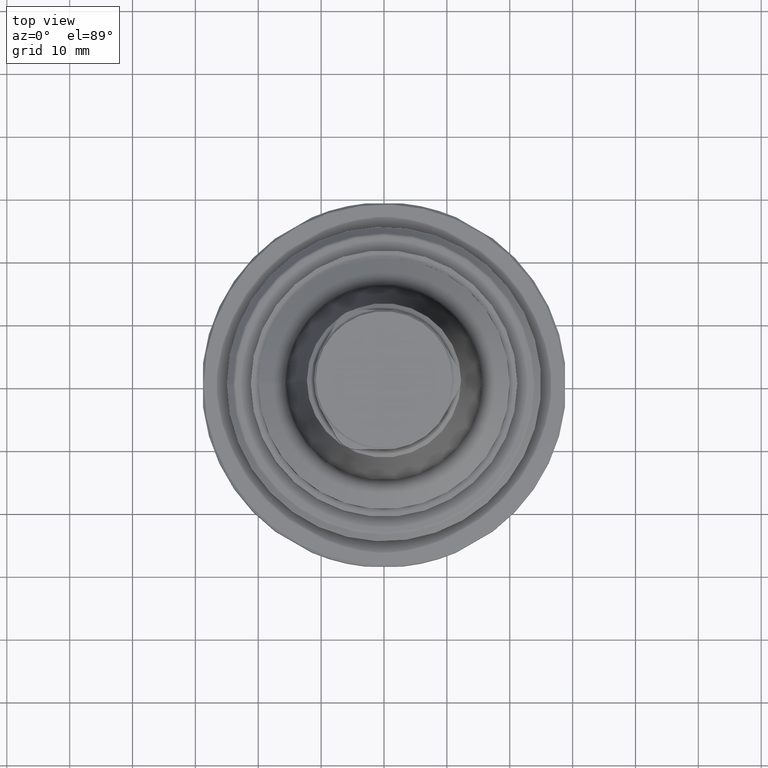
[diagram: clean part render]
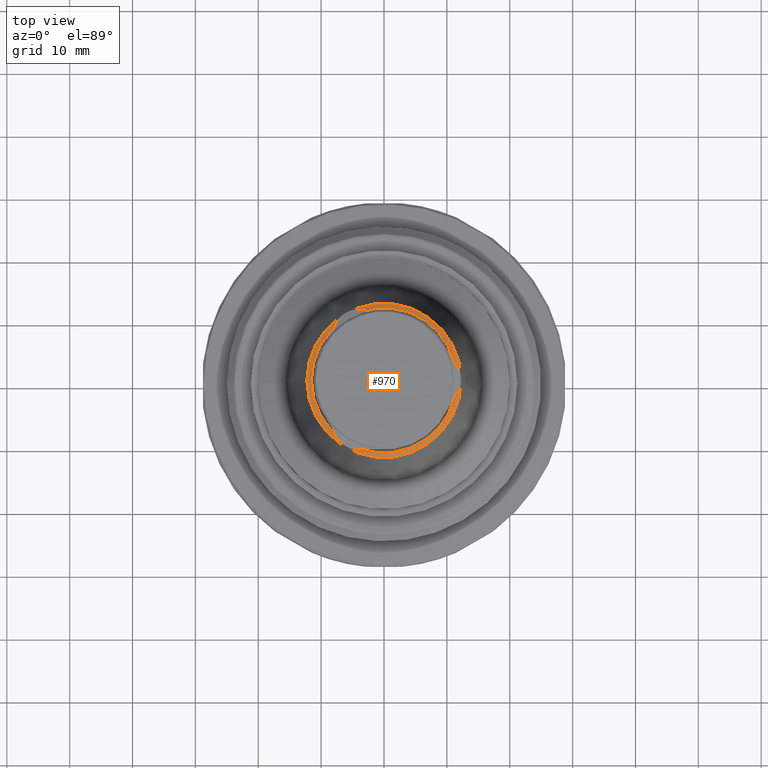
[diagram: same view with one face highlighted and labeled with its STEP entity id]
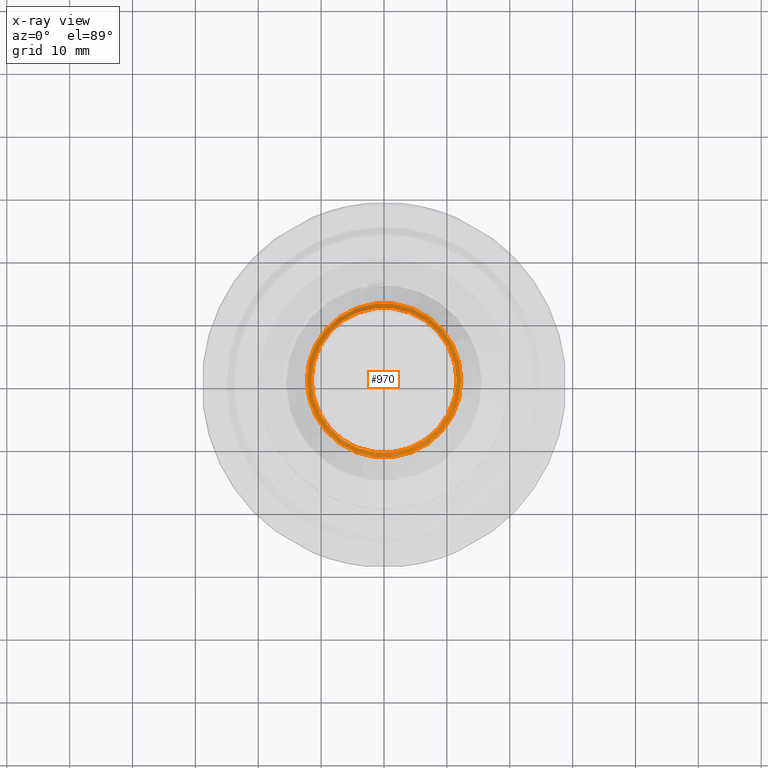
[diagram: x-ray of the same camera — body ghosted, the highlighted face saturated]
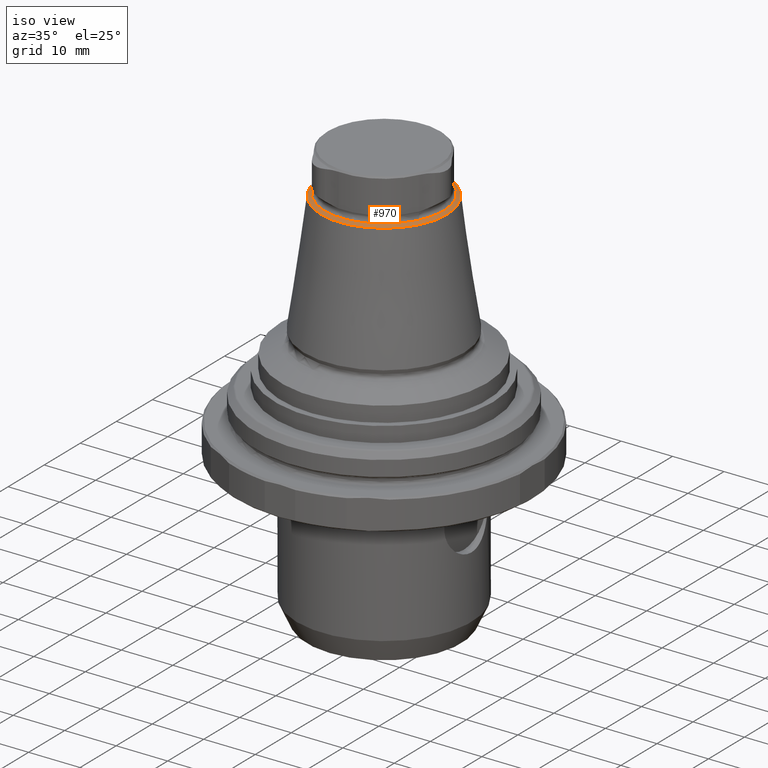
[diagram: same view with one face highlighted and labeled with its STEP entity id]
A machine part, top view. The second image highlights one B-rep face of the part: STEP entity #970.
The next image is the same camera in x-ray: the body ghosted, the highlighted face saturated — about 0% of this face is hidden behind the body in this view.
A second angle (iso view) of the same face is appended — the face is thin or edge-on in the first view.
In plain terms, the highlighted conical surface has half-angle 60 deg.
Its self-contained STEP definition (entity closure, byte-faithful):
#105=CONICAL_SURFACE('',#1098,12.2706905250473,1.0471975511966);
#162=CIRCLE('',#1097,11.55);
#163=CIRCLE('',#1099,12.2706905250473);
#400=ORIENTED_EDGE('',*,*,#543,.T.);
#401=ORIENTED_EDGE('',*,*,#544,.F.);
#543=EDGE_CURVE('',#636,#636,#162,.T.);
#544=EDGE_CURVE('',#637,#637,#163,.T.);
#636=VERTEX_POINT('',#1818);
#637=VERTEX_POINT('',#1821);
#762=EDGE_LOOP('',(#400));
#763=EDGE_LOOP('',(#401));
#862=FACE_BOUND('',#762,.T.);
#863=FACE_BOUND('',#763,.T.);
#970=ADVANCED_FACE('',(#862,#863),#105,.T.);
#1097=AXIS2_PLACEMENT_3D('',#1817,#1351,#1352);
#1098=AXIS2_PLACEMENT_3D('',#1819,#1353,#1354);
#1099=AXIS2_PLACEMENT_3D('',#1820,#1355,#1356);
#1351=DIRECTION('',(1.27319154200133E-16,-7.79579225983867E-33,-1.));
#1352=DIRECTION('',(-1.,6.12303176911189E-17,-1.27319154200133E-16));
#1353=DIRECTION('',(1.27319154200133E-16,-7.79579225983867E-33,-1.));
#1354=DIRECTION('',(-1.,6.12303176911189E-17,-1.27319154200133E-16));
#1355=DIRECTION('',(1.27319154200133E-16,-7.79579225983867E-33,-1.));
#1356=DIRECTION('',(-1.,6.12303176911189E-17,-1.27319154200133E-16));
#1817=CARTESIAN_POINT('',(1.08717570076556E-15,-6.65681135439398E-32,38.9650908686385));
#1818=CARTESIAN_POINT('',(-11.55,7.07210169332423E-16,38.9650908686385));
#1819=CARTESIAN_POINT('',(1.140152038231E-15,-6.98118715170611E-32,38.549));
#1820=CARTESIAN_POINT('',(1.140152038231E-15,-6.98118715170611E-32,38.549));
#1821=CARTESIAN_POINT('',(-12.2706905250473,7.51338279138048E-16,38.549));